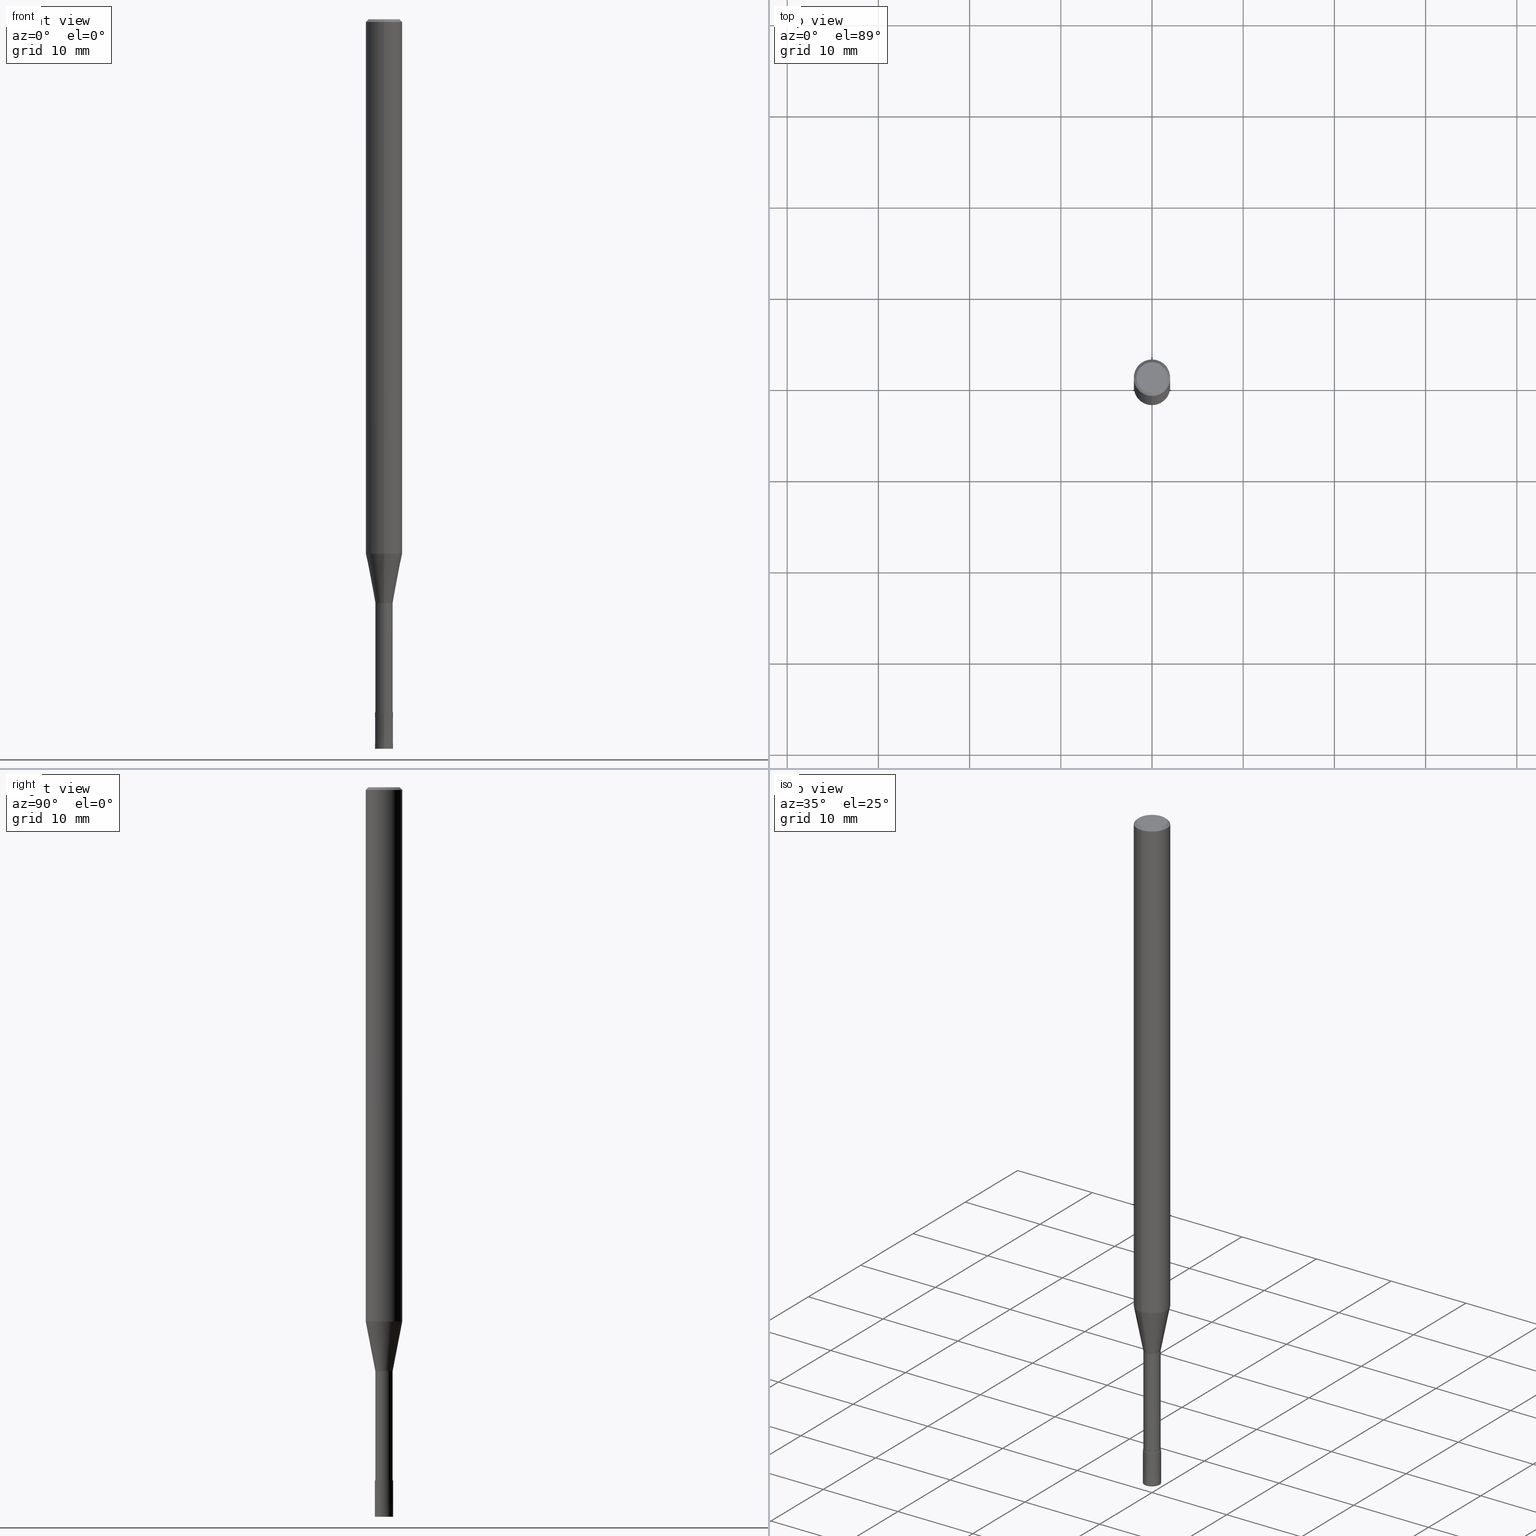
[diagram: canonical four-view strip — front | top / right | iso, engineering-drawing reading convention]
A machine part, canonical four-view strip (front | top / right | iso — engineering-drawing reading convention). The complete STEP part file that produces these views, byte-faithful:
ISO-10303-21;
HEADER;
FILE_DESCRIPTION(('no description'),'unknown implementation level');
FILE_NAME('CPRL2020-16-Huellk.stp','  ',('CIMSOURCE GmbH'),('CADClick - KiM GmbH - www.kimweb.de'),'unknown preprocess','ACIS','unknown authorization');
FILE_SCHEMA(('automotive_design'));
ENDSEC;
DATA;
#1=MECHANICAL_DESIGN_GEOMETRIC_PRESENTATION_REPRESENTATION(' ',(#14,#15,#16,#17,#18,#19,#20,#21,#22,#23,#24,#25,#26,#27,#28,#29,#30,#31,#32,#33,#34,#35,#36,#37,#38,#39,#40,#41,#42,#43,#44,#45,#46,#47,#48,#49,#50,#51,#52,#53,#54,#55,#56,#57,#58,#59,#60,#61,#62,#63,#64,#65,#66,#67,#68,#69,#70,#71,#72),#10);
#2=PRODUCT_DEFINITION_CONTEXT('',#73,'design');
#3=APPLICATION_PROTOCOL_DEFINITION('INTERNATIONAL STANDARD','automotive_design',1994,#73);
#4=PRODUCT_CATEGORY_RELATIONSHIP('NONE','NONE',#74,#75);
#5=SHAPE_DEFINITION_REPRESENTATION(#76,#77);
#6=PRODUCT_DEFINITION_CONTEXT('',#78,'design');
#7=APPLICATION_PROTOCOL_DEFINITION('INTERNATIONAL STANDARD','automotive_design',1994,#78);
#8=PRODUCT_CATEGORY_RELATIONSHIP('NONE','NONE',#79,#80);
#9=SHAPE_DEFINITION_REPRESENTATION(#81,#82);
#10= (GEOMETRIC_REPRESENTATION_CONTEXT(3)GLOBAL_UNCERTAINTY_ASSIGNED_CONTEXT((#85))GLOBAL_UNIT_ASSIGNED_CONTEXT((#87,#88,#89))REPRESENTATION_CONTEXT('NONE','WORKSPACE'));
#14=STYLED_ITEM('',(#91),#92);
#15=STYLED_ITEM('',(#93),#94);
#16=STYLED_ITEM('',(#95),#96);
#17=STYLED_ITEM('',(#97),#98);
#18=STYLED_ITEM('',(#99),#100);
#19=STYLED_ITEM('',(#101),#102);
#20=STYLED_ITEM('',(#103),#104);
#21=STYLED_ITEM('',(#105),#106);
#22=STYLED_ITEM('',(#107),#108);
#23=STYLED_ITEM('',(#109),#110);
#24=STYLED_ITEM('',(#111),#112);
#25=STYLED_ITEM('',(#113),#114);
#26=STYLED_ITEM('',(#115),#116);
#27=STYLED_ITEM('',(#117),#118);
#28=STYLED_ITEM('',(#119),#120);
#29=STYLED_ITEM('',(#121),#122);
#30=STYLED_ITEM('',(#123),#124);
#31=STYLED_ITEM('',(#125),#126);
#32=STYLED_ITEM('',(#127),#128);
#33=STYLED_ITEM('',(#129),#130);
#34=STYLED_ITEM('',(#131),#132);
#35=STYLED_ITEM('',(#133),#134);
#36=STYLED_ITEM('',(#135),#136);
#37=STYLED_ITEM('',(#137),#138);
#38=STYLED_ITEM('',(#139),#140);
#39=STYLED_ITEM('',(#141),#142);
#40=STYLED_ITEM('',(#143),#144);
#41=STYLED_ITEM('',(#145),#146);
#42=STYLED_ITEM('',(#147),#148);
#43=STYLED_ITEM('',(#149),#150);
#44=STYLED_ITEM('',(#151),#152);
#45=STYLED_ITEM('',(#153),#154);
#46=STYLED_ITEM('',(#155),#156);
#47=STYLED_ITEM('',(#157),#158);
#48=STYLED_ITEM('',(#159),#160);
#49=STYLED_ITEM('',(#161),#162);
#50=STYLED_ITEM('',(#163),#164);
#51=STYLED_ITEM('',(#165),#166);
#52=STYLED_ITEM('',(#167),#168);
#53=STYLED_ITEM('',(#169),#170);
#54=STYLED_ITEM('',(#171),#172);
#55=STYLED_ITEM('',(#173),#174);
#56=STYLED_ITEM('',(#175),#176);
#57=STYLED_ITEM('',(#177),#178);
#58=STYLED_ITEM('',(#179),#180);
#59=STYLED_ITEM('',(#181),#182);
#60=STYLED_ITEM('',(#183),#184);
#61=STYLED_ITEM('',(#185),#186);
#62=STYLED_ITEM('',(#187),#188);
#63=STYLED_ITEM('',(#189),#190);
#64=STYLED_ITEM('',(#191),#192);
#65=STYLED_ITEM('',(#193),#194);
#66=STYLED_ITEM('',(#195),#196);
#67=STYLED_ITEM('',(#197),#198);
#68=STYLED_ITEM('',(#199),#200);
#69=STYLED_ITEM('',(#201),#202);
#70=STYLED_ITEM('',(#203),#204);
#71=STYLED_ITEM('',(#205),#206);
#72=STYLED_ITEM('',(#207),#208);
#73=APPLICATION_CONTEXT(' ');
#74=PRODUCT_CATEGORY('part','NONE');
#75=PRODUCT_RELATED_PRODUCT_CATEGORY('detail',' ',(#209));
#76=PRODUCT_DEFINITION_SHAPE('NONE','NONE',#210);
#77=ADVANCED_BREP_SHAPE_REPRESENTATION('1',(#94,#211),#10);
#78=APPLICATION_CONTEXT(' ');
#79=PRODUCT_CATEGORY('part','NONE');
#80=PRODUCT_RELATED_PRODUCT_CATEGORY('detail',' ',(#212));
#81=PRODUCT_DEFINITION_SHAPE('NONE','NONE',#213);
#82=ADVANCED_BREP_SHAPE_REPRESENTATION('2',(#168,#214),#10);
#85=UNCERTAINTY_MEASURE_WITH_UNIT(LENGTH_MEASURE(1.0E-006),#87,'','');
#87= (CONVERSION_BASED_UNIT('MILLIMETRE',#217)LENGTH_UNIT()NAMED_UNIT(#220));
#88= (NAMED_UNIT(#222)PLANE_ANGLE_UNIT()SI_UNIT($,.RADIAN.));
#89= (NAMED_UNIT(#222)SOLID_ANGLE_UNIT()SI_UNIT($,.STERADIAN.));
#91=PRESENTATION_STYLE_ASSIGNMENT((#228));
#92=EDGE_CURVE('',#100,#174,#229,.T.);
#93=PRESENTATION_STYLE_ASSIGNMENT((#230));
#94=MANIFOLD_SOLID_BREP('1',#231);
#95=PRESENTATION_STYLE_ASSIGNMENT((#232));
#96=ADVANCED_FACE('',(#233),#234,.T.);
#97=PRESENTATION_STYLE_ASSIGNMENT((#235));
#98=ADVANCED_FACE('',(#236),#237,.T.);
#99=PRESENTATION_STYLE_ASSIGNMENT((#238));
#100=VERTEX_POINT('',#239);
#101=PRESENTATION_STYLE_ASSIGNMENT((#240));
#102=EDGE_CURVE('',#202,#186,#241,.T.);
#103=PRESENTATION_STYLE_ASSIGNMENT((#242));
#104=ADVANCED_FACE('',(#243,#244),#245,.T.);
#105=PRESENTATION_STYLE_ASSIGNMENT((#246));
#106=EDGE_CURVE('',#164,#178,#247,.T.);
#107=PRESENTATION_STYLE_ASSIGNMENT((#248));
#108=EDGE_CURVE('',#186,#202,#249,.T.);
#109=PRESENTATION_STYLE_ASSIGNMENT((#250));
#110=ADVANCED_FACE('',(#251),#252,.T.);
#111=PRESENTATION_STYLE_ASSIGNMENT((#253));
#112=EDGE_CURVE('',#100,#128,#254,.T.);
#113=PRESENTATION_STYLE_ASSIGNMENT((#255));
#114=ADVANCED_FACE('',(#256),#257,.T.);
#115=PRESENTATION_STYLE_ASSIGNMENT((#258));
#116=ADVANCED_FACE('',(#259),#260,.T.);
#117=PRESENTATION_STYLE_ASSIGNMENT((#261));
#118=EDGE_CURVE('',#184,#134,#262,.T.);
#119=PRESENTATION_STYLE_ASSIGNMENT((#263));
#120=EDGE_CURVE('',#160,#122,#264,.T.);
#121=PRESENTATION_STYLE_ASSIGNMENT((#265));
#122=VERTEX_POINT('',#266);
#123=PRESENTATION_STYLE_ASSIGNMENT((#267));
#124=ADVANCED_FACE('',(#268),#269,.T.);
#125=PRESENTATION_STYLE_ASSIGNMENT((#270));
#126=EDGE_CURVE('',#196,#190,#271,.T.);
#127=PRESENTATION_STYLE_ASSIGNMENT((#272));
#128=VERTEX_POINT('',#273);
#129=PRESENTATION_STYLE_ASSIGNMENT((#274));
#130=EDGE_CURVE('',#184,#146,#275,.T.);
#131=PRESENTATION_STYLE_ASSIGNMENT((#276));
#132=VERTEX_POINT('',#277);
#133=PRESENTATION_STYLE_ASSIGNMENT((#278));
#134=VERTEX_POINT('',#279);
#135=PRESENTATION_STYLE_ASSIGNMENT((#280));
#136=ADVANCED_FACE('',(#281),#282,.T.);
#137=PRESENTATION_STYLE_ASSIGNMENT((#283));
#138=EDGE_CURVE('',#128,#202,#284,.T.);
#139=PRESENTATION_STYLE_ASSIGNMENT((#285));
#140=ADVANCED_FACE('',(#286),#287,.T.);
#141=PRESENTATION_STYLE_ASSIGNMENT((#288));
#142=EDGE_CURVE('',#186,#132,#289,.T.);
#143=PRESENTATION_STYLE_ASSIGNMENT((#290));
#144=ADVANCED_FACE('',(#291),#292,.T.);
#145=PRESENTATION_STYLE_ASSIGNMENT((#293));
#146=VERTEX_POINT('',#294);
#147=PRESENTATION_STYLE_ASSIGNMENT((#295));
#148=EDGE_CURVE('',#174,#100,#296,.T.);
#149=PRESENTATION_STYLE_ASSIGNMENT((#297));
#150=EDGE_CURVE('',#160,#190,#298,.T.);
#151=PRESENTATION_STYLE_ASSIGNMENT((#299));
#152=ADVANCED_FACE('',(#300),#301,.T.);
#153=PRESENTATION_STYLE_ASSIGNMENT((#302));
#154=EDGE_CURVE('',#134,#192,#303,.T.);
#155=PRESENTATION_STYLE_ASSIGNMENT((#304));
#156=EDGE_CURVE('',#132,#128,#305,.T.);
#157=PRESENTATION_STYLE_ASSIGNMENT((#306));
#158=EDGE_CURVE('',#190,#160,#307,.T.);
#159=PRESENTATION_STYLE_ASSIGNMENT((#308));
#160=VERTEX_POINT('',#309);
#161=PRESENTATION_STYLE_ASSIGNMENT((#310));
#162=EDGE_CURVE('',#122,#164,#311,.T.);
#163=PRESENTATION_STYLE_ASSIGNMENT((#312));
#164=VERTEX_POINT('',#313);
#165=PRESENTATION_STYLE_ASSIGNMENT((#314));
#166=EDGE_CURVE('',#178,#164,#315,.T.);
#167=PRESENTATION_STYLE_ASSIGNMENT((#316));
#168=MANIFOLD_SOLID_BREP('2',#317);
#169=PRESENTATION_STYLE_ASSIGNMENT((#318));
#170=EDGE_CURVE('',#178,#196,#319,.T.);
#171=PRESENTATION_STYLE_ASSIGNMENT((#320));
#172=EDGE_CURVE('',#132,#174,#321,.T.);
#173=PRESENTATION_STYLE_ASSIGNMENT((#322));
#174=VERTEX_POINT('',#323);
#175=PRESENTATION_STYLE_ASSIGNMENT((#324));
#176=ADVANCED_FACE('',(#325),#326,.T.);
#177=PRESENTATION_STYLE_ASSIGNMENT((#327));
#178=VERTEX_POINT('',#328);
#179=PRESENTATION_STYLE_ASSIGNMENT((#329));
#180=EDGE_CURVE('',#192,#134,#330,.T.);
#181=PRESENTATION_STYLE_ASSIGNMENT((#331));
#182=EDGE_CURVE('',#196,#122,#332,.T.);
#183=PRESENTATION_STYLE_ASSIGNMENT((#333));
#184=VERTEX_POINT('',#334);
#185=PRESENTATION_STYLE_ASSIGNMENT((#335));
#186=VERTEX_POINT('',#336);
#187=PRESENTATION_STYLE_ASSIGNMENT((#337));
#188=EDGE_CURVE('',#192,#146,#338,.T.);
#189=PRESENTATION_STYLE_ASSIGNMENT((#339));
#190=VERTEX_POINT('',#340);
#191=PRESENTATION_STYLE_ASSIGNMENT((#341));
#192=VERTEX_POINT('',#342);
#193=PRESENTATION_STYLE_ASSIGNMENT((#343));
#194=ADVANCED_FACE('',(#344),#345,.T.);
#195=PRESENTATION_STYLE_ASSIGNMENT((#346));
#196=VERTEX_POINT('',#347);
#197=PRESENTATION_STYLE_ASSIGNMENT((#348));
#198=EDGE_CURVE('',#122,#196,#349,.T.);
#199=PRESENTATION_STYLE_ASSIGNMENT((#350));
#200=ADVANCED_FACE('',(#351),#352,.T.);
#201=PRESENTATION_STYLE_ASSIGNMENT((#353));
#202=VERTEX_POINT('',#354);
#203=PRESENTATION_STYLE_ASSIGNMENT((#355));
#204=EDGE_CURVE('',#146,#184,#356,.T.);
#205=PRESENTATION_STYLE_ASSIGNMENT((#357));
#206=EDGE_CURVE('',#128,#132,#358,.T.);
#207=PRESENTATION_STYLE_ASSIGNMENT((#359));
#208=ADVANCED_FACE('',(#360),#361,.T.);
#209=PRODUCT('1','1','PART-1-DESC',(#362));
#210=PRODUCT_DEFINITION('NONE','NONE',#363,#2);
#211=AXIS2_PLACEMENT_3D('',#364,#365,#366);
#212=PRODUCT('2','2','PART-2-DESC',(#367));
#213=PRODUCT_DEFINITION('NONE','NONE',#368,#6);
#214=AXIS2_PLACEMENT_3D('',#369,#370,#371);
#217=LENGTH_MEASURE_WITH_UNIT(LENGTH_MEASURE(1.0),#372);
#220=DIMENSIONAL_EXPONENTS(1.0,0.0,0.0,0.0,0.0,0.0,0.0);
#222=DIMENSIONAL_EXPONENTS(0.0,0.0,0.0,0.0,0.0,0.0,0.0);
#228=CURVE_STYLE('',#373,POSITIVE_LENGTH_MEASURE(1.0E-006),#374);
#229=CIRCLE('',#375,2.0);
#230=SURFACE_STYLE_USAGE(.BOTH.,#376);
#231=CLOSED_SHELL('',(#200,#98,#208,#116,#104,#110,#152,#136,#194,#140,#124));
#232=SURFACE_STYLE_USAGE(.BOTH.,#377);
#233=FACE_OUTER_BOUND('',#378,.T.);
#234=CONICAL_SURFACE('',#379,0.99995,2.49999999947889E-005);
#235=SURFACE_STYLE_USAGE(.BOTH.,#380);
#236=FACE_OUTER_BOUND('',#381,.T.);
#237=CONICAL_SURFACE('',#382,1.47495,0.191978649183841);
#238=POINT_STYLE(' ',#383,POSITIVE_LENGTH_MEASURE(1.0E-006),#384);
#239=CARTESIAN_POINT('',(2.44921270764475E-016,-2.0,-58.598));
#240=CURVE_STYLE('',#385,POSITIVE_LENGTH_MEASURE(1.0E-006),#386);
#241=CIRCLE('',#387,1.7);
#242=SURFACE_STYLE_USAGE(.BOTH.,#388);
#243=FACE_OUTER_BOUND('',#389,.T.);
#244=FACE_BOUND('',#390,.T.);
#245=PLANE('',#391);
#246=CURVE_STYLE('',#392,POSITIVE_LENGTH_MEASURE(1.0E-006),#393);
#247=CIRCLE('',#394,0.94995);
#248=CURVE_STYLE('',#395,POSITIVE_LENGTH_MEASURE(1.0E-006),#396);
#249=CIRCLE('',#397,1.7);
#250=SURFACE_STYLE_USAGE(.BOTH.,#398);
#251=FACE_OUTER_BOUND('',#399,.T.);
#252=PLANE('',#400);
#253=CURVE_STYLE('',#401,POSITIVE_LENGTH_MEASURE(1.0E-006),#402);
#254=LINE('',#403,#404);
#255=SURFACE_STYLE_USAGE(.BOTH.,#405);
#256=FACE_OUTER_BOUND('',#406,.T.);
#257=CONICAL_SURFACE('',#407,0.99995,2.49999999947889E-005);
#258=SURFACE_STYLE_USAGE(.BOTH.,#408);
#259=FACE_OUTER_BOUND('',#409,.T.);
#260=CONICAL_SURFACE('',#410,1.85,0.785398163397453);
#261=CURVE_STYLE('',#411,POSITIVE_LENGTH_MEASURE(1.0E-006),#412);
#262=LINE('',#413,#414);
#263=CURVE_STYLE('',#415,POSITIVE_LENGTH_MEASURE(1.0E-006),#416);
#264=LINE('',#417,#418);
#265=POINT_STYLE(' ',#419,POSITIVE_LENGTH_MEASURE(1.0E-006),#420);
#266=CARTESIAN_POINT('',(0.0,0.94995,-64.0));
#267=SURFACE_STYLE_USAGE(.BOTH.,#421);
#268=FACE_OUTER_BOUND('',#422,.T.);
#269=PLANE('',#423);
#270=CURVE_STYLE('',#424,POSITIVE_LENGTH_MEASURE(1.0E-006),#425);
#271=LINE('',#426,#427);
#272=POINT_STYLE(' ',#428,POSITIVE_LENGTH_MEASURE(1.0E-006),#429);
#273=CARTESIAN_POINT('',(2.44921270764475E-016,-2.0,-0.299999999999997));
#274=CURVE_STYLE('',#430,POSITIVE_LENGTH_MEASURE(1.0E-006),#431);
#275=CIRCLE('',#432,0.9999);
#276=POINT_STYLE(' ',#433,POSITIVE_LENGTH_MEASURE(1.0E-006),#434);
#277=CARTESIAN_POINT('',(0.0,2.0,-0.299999999999997));
#278=POINT_STYLE(' ',#435,POSITIVE_LENGTH_MEASURE(1.0E-006),#436);
#279=CARTESIAN_POINT('',(0.0,1.0,-80.0));
#280=SURFACE_STYLE_USAGE(.BOTH.,#437);
#281=FACE_OUTER_BOUND('',#438,.T.);
#282=CYLINDRICAL_SURFACE('',#439,2.0);
#283=CURVE_STYLE('',#440,POSITIVE_LENGTH_MEASURE(1.0E-006),#441);
#284=LINE('',#442,#443);
#285=SURFACE_STYLE_USAGE(.BOTH.,#444);
#286=FACE_OUTER_BOUND('',#445,.T.);
#287=CYLINDRICAL_SURFACE('',#446,0.94995);
#288=CURVE_STYLE('',#447,POSITIVE_LENGTH_MEASURE(1.0E-006),#448);
#289=LINE('',#449,#450);
#290=SURFACE_STYLE_USAGE(.BOTH.,#451);
#291=FACE_OUTER_BOUND('',#452,.T.);
#292=PLANE('',#453);
#293=POINT_STYLE(' ',#454,POSITIVE_LENGTH_MEASURE(1.0E-006),#455);
#294=CARTESIAN_POINT('',(1.224483893187E-016,-0.9999,-76.0));
#295=CURVE_STYLE('',#456,POSITIVE_LENGTH_MEASURE(1.0E-006),#457);
#296=CIRCLE('',#458,2.0);
#297=CURVE_STYLE('',#459,POSITIVE_LENGTH_MEASURE(1.0E-006),#460);
#298=CIRCLE('',#461,1.99995);
#299=SURFACE_STYLE_USAGE(.BOTH.,#462);
#300=FACE_OUTER_BOUND('',#463,.T.);
#301=CONICAL_SURFACE('',#464,1.85,0.785398163397453);
#302=CURVE_STYLE('',#465,POSITIVE_LENGTH_MEASURE(1.0E-006),#466);
#303=CIRCLE('',#467,1.0);
#304=CURVE_STYLE('',#468,POSITIVE_LENGTH_MEASURE(1.0E-006),#469);
#305=CIRCLE('',#470,2.0);
#306=CURVE_STYLE('',#471,POSITIVE_LENGTH_MEASURE(1.0E-006),#472);
#307=CIRCLE('',#473,1.99995);
#308=POINT_STYLE(' ',#474,POSITIVE_LENGTH_MEASURE(1.0E-006),#475);
#309=CARTESIAN_POINT('',(0.0,1.99995,-58.598));
#310=CURVE_STYLE('',#476,POSITIVE_LENGTH_MEASURE(1.0E-006),#477);
#311=LINE('',#478,#479);
#312=POINT_STYLE(' ',#480,POSITIVE_LENGTH_MEASURE(1.0E-006),#481);
#313=CARTESIAN_POINT('',(0.0,0.94995,-76.0));
#314=CURVE_STYLE('',#482,POSITIVE_LENGTH_MEASURE(1.0E-006),#483);
#315=CIRCLE('',#484,0.94995);
#316=SURFACE_STYLE_USAGE(.BOTH.,#485);
#317=CLOSED_SHELL('',(#96,#144,#114,#176));
#318=CURVE_STYLE('',#486,POSITIVE_LENGTH_MEASURE(1.0E-006),#487);
#319=LINE('',#488,#489);
#320=CURVE_STYLE('',#490,POSITIVE_LENGTH_MEASURE(1.0E-006),#491);
#321=LINE('',#492,#493);
#322=POINT_STYLE(' ',#494,POSITIVE_LENGTH_MEASURE(1.0E-006),#495);
#323=CARTESIAN_POINT('',(0.0,2.0,-58.598));
#324=SURFACE_STYLE_USAGE(.BOTH.,#496);
#325=FACE_OUTER_BOUND('',#497,.T.);
#326=PLANE('',#498);
#327=POINT_STYLE(' ',#499,POSITIVE_LENGTH_MEASURE(1.0E-006),#500);
#328=CARTESIAN_POINT('',(1.16331480581357E-016,-0.94995,-76.0));
#329=CURVE_STYLE('',#501,POSITIVE_LENGTH_MEASURE(1.0E-006),#502);
#330=CIRCLE('',#503,1.0);
#331=CURVE_STYLE('',#504,POSITIVE_LENGTH_MEASURE(1.0E-006),#505);
#332=CIRCLE('',#506,0.94995);
#333=POINT_STYLE(' ',#507,POSITIVE_LENGTH_MEASURE(1.0E-006),#508);
#334=CARTESIAN_POINT('',(0.0,0.9999,-76.0));
#335=POINT_STYLE(' ',#509,POSITIVE_LENGTH_MEASURE(1.0E-006),#510);
#336=CARTESIAN_POINT('',(0.0,1.7,0.0));
#337=CURVE_STYLE('',#511,POSITIVE_LENGTH_MEASURE(1.0E-006),#512);
#338=LINE('',#513,#514);
#339=POINT_STYLE(' ',#515,POSITIVE_LENGTH_MEASURE(1.0E-006),#516);
#340=CARTESIAN_POINT('',(2.44915147732706E-016,-1.99995,-58.598));
#341=POINT_STYLE(' ',#517,POSITIVE_LENGTH_MEASURE(1.0E-006),#518);
#342=CARTESIAN_POINT('',(1.22460635382238E-016,-1.0,-80.0));
#343=SURFACE_STYLE_USAGE(.BOTH.,#519);
#344=FACE_OUTER_BOUND('',#520,.T.);
#345=CONICAL_SURFACE('',#521,1.47495,0.191978649183841);
#346=POINT_STYLE(' ',#522,POSITIVE_LENGTH_MEASURE(1.0E-006),#523);
#347=CARTESIAN_POINT('',(1.16331480581357E-016,-0.94995,-64.0));
#348=CURVE_STYLE('',#524,POSITIVE_LENGTH_MEASURE(1.0E-006),#525);
#349=CIRCLE('',#526,0.94995);
#350=SURFACE_STYLE_USAGE(.BOTH.,#527);
#351=FACE_OUTER_BOUND('',#528,.T.);
#352=CYLINDRICAL_SURFACE('',#529,0.94995);
#353=POINT_STYLE(' ',#530,POSITIVE_LENGTH_MEASURE(1.0E-006),#531);
#354=CARTESIAN_POINT('',(2.08183080149804E-016,-1.7,0.0));
#355=CURVE_STYLE('',#532,POSITIVE_LENGTH_MEASURE(1.0E-006),#533);
#356=CIRCLE('',#534,0.9999);
#357=CURVE_STYLE('',#535,POSITIVE_LENGTH_MEASURE(1.0E-006),#536);
#358=CIRCLE('',#537,2.0);
#359=SURFACE_STYLE_USAGE(.BOTH.,#538);
#360=FACE_OUTER_BOUND('',#539,.T.);
#361=CYLINDRICAL_SURFACE('',#540,2.0);
#362=PRODUCT_CONTEXT('',#73,'mechanical');
#363=PRODUCT_DEFINITION_FORMATION_WITH_SPECIFIED_SOURCE(' ','NONE',#209,.NOT_KNOWN.);
#364=CARTESIAN_POINT('',(0.0,0.0,0.0));
#365=DIRECTION('',(0.0,0.0,1.0));
#366=DIRECTION('',(1.0,0.0,0.0));
#367=PRODUCT_CONTEXT('',#78,'mechanical');
#368=PRODUCT_DEFINITION_FORMATION_WITH_SPECIFIED_SOURCE(' ','NONE',#212,.NOT_KNOWN.);
#369=CARTESIAN_POINT('',(0.0,0.0,0.0));
#370=DIRECTION('',(0.0,0.0,1.0));
#371=DIRECTION('',(1.0,0.0,0.0));
#372= (NAMED_UNIT(#220)LENGTH_UNIT()SI_UNIT(.MILLI.,.METRE.));
#373=DRAUGHTING_PRE_DEFINED_CURVE_FONT('continuous');
#374=COLOUR_RGB('',0.498039215803146,0.498039215803146,0.498039215803146);
#375=AXIS2_PLACEMENT_3D('',#542,#543,#544);
#376=SURFACE_SIDE_STYLE('',(#545));
#377=SURFACE_SIDE_STYLE('',(#546));
#378=EDGE_LOOP('',(#547,#548,#549,#550));
#379=AXIS2_PLACEMENT_3D('',#551,#552,#553);
#380=SURFACE_SIDE_STYLE('',(#554));
#381=EDGE_LOOP('',(#555,#556,#557,#558));
#382=AXIS2_PLACEMENT_3D('',#559,#560,#561);
#383=PRE_DEFINED_MARKER('');
#384=COLOUR_RGB('',0.498039215803146,0.498039215803146,0.498039215803146);
#385=DRAUGHTING_PRE_DEFINED_CURVE_FONT('continuous');
#386=COLOUR_RGB('',0.498039215803146,0.498039215803146,0.498039215803146);
#387=AXIS2_PLACEMENT_3D('',#562,#563,#564);
#388=SURFACE_SIDE_STYLE('',(#565));
#389=EDGE_LOOP('',(#566,#567));
#390=EDGE_LOOP('',(#568,#569));
#391=AXIS2_PLACEMENT_3D('',#570,#571,#572);
#392=DRAUGHTING_PRE_DEFINED_CURVE_FONT('continuous');
#393=COLOUR_RGB('',0.498039215803146,0.498039215803146,0.498039215803146);
#394=AXIS2_PLACEMENT_3D('',#573,#574,#575);
#395=DRAUGHTING_PRE_DEFINED_CURVE_FONT('continuous');
#396=COLOUR_RGB('',0.498039215803146,0.498039215803146,0.498039215803146);
#397=AXIS2_PLACEMENT_3D('',#576,#577,#578);
#398=SURFACE_SIDE_STYLE('',(#579));
#399=EDGE_LOOP('',(#580,#581));
#400=AXIS2_PLACEMENT_3D('',#582,#583,#584);
#401=DRAUGHTING_PRE_DEFINED_CURVE_FONT('continuous');
#402=COLOUR_RGB('',0.498039215803146,0.498039215803146,0.498039215803146);
#403=CARTESIAN_POINT('',(2.44921270764475E-016,-2.0,-29.449));
#404=VECTOR('',#585,1.0);
#405=SURFACE_SIDE_STYLE('',(#586));
#406=EDGE_LOOP('',(#587,#588,#589,#590));
#407=AXIS2_PLACEMENT_3D('',#591,#592,#593);
#408=SURFACE_SIDE_STYLE('',(#594));
#409=EDGE_LOOP('',(#595,#596,#597,#598));
#410=AXIS2_PLACEMENT_3D('',#599,#600,#601);
#411=DRAUGHTING_PRE_DEFINED_CURVE_FONT('continuous');
#412=COLOUR_RGB('',0.800000011920929,0.800000011920929,0.800000011920929);
#413=CARTESIAN_POINT('',(-1.22454512350469E-016,0.99995,-78.0));
#414=VECTOR('',#602,1.0);
#415=DRAUGHTING_PRE_DEFINED_CURVE_FONT('continuous');
#416=COLOUR_RGB('',0.498039215803146,0.498039215803146,0.498039215803146);
#417=CARTESIAN_POINT('',(-1.80623314157032E-016,1.47495,-61.299));
#418=VECTOR('',#603,1.0);
#419=PRE_DEFINED_MARKER('');
#420=COLOUR_RGB('',0.498039215803146,0.498039215803146,0.498039215803146);
#421=SURFACE_SIDE_STYLE('',(#604));
#422=EDGE_LOOP('',(#605,#606));
#423=AXIS2_PLACEMENT_3D('',#607,#608,#609);
#424=DRAUGHTING_PRE_DEFINED_CURVE_FONT('continuous');
#425=COLOUR_RGB('',0.498039215803146,0.498039215803146,0.498039215803146);
#426=CARTESIAN_POINT('',(1.80623314157031E-016,-1.47495,-61.299));
#427=VECTOR('',#610,1.0);
#428=PRE_DEFINED_MARKER('');
#429=COLOUR_RGB('',0.498039215803146,0.498039215803146,0.498039215803146);
#430=DRAUGHTING_PRE_DEFINED_CURVE_FONT('continuous');
#431=COLOUR_RGB('',0.800000011920929,0.800000011920929,0.800000011920929);
#432=AXIS2_PLACEMENT_3D('',#611,#612,#613);
#433=PRE_DEFINED_MARKER('');
#434=COLOUR_RGB('',0.498039215803146,0.498039215803146,0.498039215803146);
#435=PRE_DEFINED_MARKER('');
#436=COLOUR_RGB('',0.800000011920929,0.800000011920929,0.800000011920929);
#437=SURFACE_SIDE_STYLE('',(#614));
#438=EDGE_LOOP('',(#615,#616,#617,#618));
#439=AXIS2_PLACEMENT_3D('',#619,#620,#621);
#440=DRAUGHTING_PRE_DEFINED_CURVE_FONT('continuous');
#441=COLOUR_RGB('',0.498039215803146,0.498039215803146,0.498039215803146);
#442=CARTESIAN_POINT('',(2.2655217545714E-016,-1.85,-0.149999999999999));
#443=VECTOR('',#622,1.0);
#444=SURFACE_SIDE_STYLE('',(#623));
#445=EDGE_LOOP('',(#624,#625,#626,#627));
#446=AXIS2_PLACEMENT_3D('',#628,#629,#630);
#447=DRAUGHTING_PRE_DEFINED_CURVE_FONT('continuous');
#448=COLOUR_RGB('',0.498039215803146,0.498039215803146,0.498039215803146);
#449=CARTESIAN_POINT('',(-2.2655217545714E-016,1.85,-0.149999999999999));
#450=VECTOR('',#631,1.0);
#451=SURFACE_SIDE_STYLE('',(#632));
#452=EDGE_LOOP('',(#633,#634));
#453=AXIS2_PLACEMENT_3D('',#635,#636,#637);
#454=PRE_DEFINED_MARKER('');
#455=COLOUR_RGB('',0.800000011920929,0.800000011920929,0.800000011920929);
#456=DRAUGHTING_PRE_DEFINED_CURVE_FONT('continuous');
#457=COLOUR_RGB('',0.498039215803146,0.498039215803146,0.498039215803146);
#458=AXIS2_PLACEMENT_3D('',#638,#639,#640);
#459=DRAUGHTING_PRE_DEFINED_CURVE_FONT('continuous');
#460=COLOUR_RGB('',0.498039215803146,0.498039215803146,0.498039215803146);
#461=AXIS2_PLACEMENT_3D('',#641,#642,#643);
#462=SURFACE_SIDE_STYLE('',(#644));
#463=EDGE_LOOP('',(#645,#646,#647,#648));
#464=AXIS2_PLACEMENT_3D('',#649,#650,#651);
#465=DRAUGHTING_PRE_DEFINED_CURVE_FONT('continuous');
#466=COLOUR_RGB('',0.800000011920929,0.800000011920929,0.800000011920929);
#467=AXIS2_PLACEMENT_3D('',#652,#653,#654);
#468=DRAUGHTING_PRE_DEFINED_CURVE_FONT('continuous');
#469=COLOUR_RGB('',0.498039215803146,0.498039215803146,0.498039215803146);
#470=AXIS2_PLACEMENT_3D('',#655,#656,#657);
#471=DRAUGHTING_PRE_DEFINED_CURVE_FONT('continuous');
#472=COLOUR_RGB('',0.498039215803146,0.498039215803146,0.498039215803146);
#473=AXIS2_PLACEMENT_3D('',#658,#659,#660);
#474=PRE_DEFINED_MARKER('');
#475=COLOUR_RGB('',0.498039215803146,0.498039215803146,0.498039215803146);
#476=DRAUGHTING_PRE_DEFINED_CURVE_FONT('continuous');
#477=COLOUR_RGB('',0.498039215803146,0.498039215803146,0.498039215803146);
#478=CARTESIAN_POINT('',(-1.16331480581357E-016,0.94995,-70.0));
#479=VECTOR('',#661,1.0);
#480=PRE_DEFINED_MARKER('');
#481=COLOUR_RGB('',0.498039215803146,0.498039215803146,0.498039215803146);
#482=DRAUGHTING_PRE_DEFINED_CURVE_FONT('continuous');
#483=COLOUR_RGB('',0.498039215803146,0.498039215803146,0.498039215803146);
#484=AXIS2_PLACEMENT_3D('',#662,#663,#664);
#485=SURFACE_SIDE_STYLE('',(#665));
#486=DRAUGHTING_PRE_DEFINED_CURVE_FONT('continuous');
#487=COLOUR_RGB('',0.498039215803146,0.498039215803146,0.498039215803146);
#488=CARTESIAN_POINT('',(1.16331480581357E-016,-0.94995,-70.0));
#489=VECTOR('',#666,1.0);
#490=DRAUGHTING_PRE_DEFINED_CURVE_FONT('continuous');
#491=COLOUR_RGB('',0.498039215803146,0.498039215803146,0.498039215803146);
#492=CARTESIAN_POINT('',(-2.44921270764475E-016,2.0,-29.449));
#493=VECTOR('',#667,1.0);
#494=PRE_DEFINED_MARKER('');
#495=COLOUR_RGB('',0.498039215803146,0.498039215803146,0.498039215803146);
#496=SURFACE_SIDE_STYLE('',(#668));
#497=EDGE_LOOP('',(#669,#670));
#498=AXIS2_PLACEMENT_3D('',#671,#672,#673);
#499=PRE_DEFINED_MARKER('');
#500=COLOUR_RGB('',0.498039215803146,0.498039215803146,0.498039215803146);
#501=DRAUGHTING_PRE_DEFINED_CURVE_FONT('continuous');
#502=COLOUR_RGB('',0.800000011920929,0.800000011920929,0.800000011920929);
#503=AXIS2_PLACEMENT_3D('',#674,#675,#676);
#504=DRAUGHTING_PRE_DEFINED_CURVE_FONT('continuous');
#505=COLOUR_RGB('',0.498039215803146,0.498039215803146,0.498039215803146);
#506=AXIS2_PLACEMENT_3D('',#677,#678,#679);
#507=PRE_DEFINED_MARKER('');
#508=COLOUR_RGB('',0.800000011920929,0.800000011920929,0.800000011920929);
#509=PRE_DEFINED_MARKER('');
#510=COLOUR_RGB('',0.498039215803146,0.498039215803146,0.498039215803146);
#511=DRAUGHTING_PRE_DEFINED_CURVE_FONT('continuous');
#512=COLOUR_RGB('',0.800000011920929,0.800000011920929,0.800000011920929);
#513=CARTESIAN_POINT('',(1.22454512350469E-016,-0.99995,-78.0));
#514=VECTOR('',#680,1.0);
#515=PRE_DEFINED_MARKER('');
#516=COLOUR_RGB('',0.498039215803146,0.498039215803146,0.498039215803146);
#517=PRE_DEFINED_MARKER('');
#518=COLOUR_RGB('',0.800000011920929,0.800000011920929,0.800000011920929);
#519=SURFACE_SIDE_STYLE('',(#681));
#520=EDGE_LOOP('',(#682,#683,#684,#685));
#521=AXIS2_PLACEMENT_3D('',#686,#687,#688);
#522=PRE_DEFINED_MARKER('');
#523=COLOUR_RGB('',0.498039215803146,0.498039215803146,0.498039215803146);
#524=DRAUGHTING_PRE_DEFINED_CURVE_FONT('continuous');
#525=COLOUR_RGB('',0.498039215803146,0.498039215803146,0.498039215803146);
#526=AXIS2_PLACEMENT_3D('',#689,#690,#691);
#527=SURFACE_SIDE_STYLE('',(#692));
#528=EDGE_LOOP('',(#693,#694,#695,#696));
#529=AXIS2_PLACEMENT_3D('',#697,#698,#699);
#530=PRE_DEFINED_MARKER('');
#531=COLOUR_RGB('',0.498039215803146,0.498039215803146,0.498039215803146);
#532=DRAUGHTING_PRE_DEFINED_CURVE_FONT('continuous');
#533=COLOUR_RGB('',0.800000011920929,0.800000011920929,0.800000011920929);
#534=AXIS2_PLACEMENT_3D('',#700,#701,#702);
#535=DRAUGHTING_PRE_DEFINED_CURVE_FONT('continuous');
#536=COLOUR_RGB('',0.498039215803146,0.498039215803146,0.498039215803146);
#537=AXIS2_PLACEMENT_3D('',#703,#704,#705);
#538=SURFACE_SIDE_STYLE('',(#706));
#539=EDGE_LOOP('',(#707,#708,#709,#710));
#540=AXIS2_PLACEMENT_3D('',#711,#712,#713);
#542=CARTESIAN_POINT('',(0.0,0.0,-58.598));
#543=DIRECTION('',(0.0,0.0,-1.0));
#544=DIRECTION('',(0.0,1.0,0.0));
#545=SURFACE_STYLE_FILL_AREA(#714);
#546=SURFACE_STYLE_FILL_AREA(#715);
#547=ORIENTED_EDGE('',*,*,#118,.F.);
#548=ORIENTED_EDGE('',*,*,#130,.T.);
#549=ORIENTED_EDGE('',*,*,#188,.F.);
#550=ORIENTED_EDGE('',*,*,#154,.F.);
#551=CARTESIAN_POINT('',(0.0,0.0,-78.0));
#552=DIRECTION('',(0.0,-0.0,-1.0));
#553=DIRECTION('',(0.0,1.0,0.0));
#554=SURFACE_STYLE_FILL_AREA(#716);
#555=ORIENTED_EDGE('',*,*,#120,.F.);
#556=ORIENTED_EDGE('',*,*,#150,.T.);
#557=ORIENTED_EDGE('',*,*,#126,.F.);
#558=ORIENTED_EDGE('',*,*,#198,.F.);
#559=CARTESIAN_POINT('',(0.0,0.0,-61.299));
#560=DIRECTION('',(-0.0,-0.0,1.0));
#561=DIRECTION('',(0.0,1.0,0.0));
#562=CARTESIAN_POINT('',(0.0,0.0,0.0));
#563=DIRECTION('',(0.0,0.0,-1.0));
#564=DIRECTION('',(0.0,1.0,0.0));
#565=SURFACE_STYLE_FILL_AREA(#717);
#566=ORIENTED_EDGE('',*,*,#148,.T.);
#567=ORIENTED_EDGE('',*,*,#92,.T.);
#568=ORIENTED_EDGE('',*,*,#150,.F.);
#569=ORIENTED_EDGE('',*,*,#158,.F.);
#570=CARTESIAN_POINT('',(0.0,1.0,-58.598));
#571=DIRECTION('',(0.0,0.0,-1.0));
#572=DIRECTION('',(0.0,1.0,0.0));
#573=CARTESIAN_POINT('',(0.0,0.0,-76.0));
#574=DIRECTION('',(0.0,0.0,-1.0));
#575=DIRECTION('',(0.0,1.0,0.0));
#576=CARTESIAN_POINT('',(0.0,0.0,0.0));
#577=DIRECTION('',(0.0,0.0,-1.0));
#578=DIRECTION('',(0.0,1.0,0.0));
#579=SURFACE_STYLE_FILL_AREA(#718);
#580=ORIENTED_EDGE('',*,*,#108,.F.);
#581=ORIENTED_EDGE('',*,*,#102,.F.);
#582=CARTESIAN_POINT('',(0.0,0.85,0.0));
#583=DIRECTION('',(-0.0,0.0,1.0));
#584=DIRECTION('',(0.0,-1.0,0.0));
#585=DIRECTION('',(-0.0,-0.0,1.0));
#586=SURFACE_STYLE_FILL_AREA(#719);
#587=ORIENTED_EDGE('',*,*,#118,.T.);
#588=ORIENTED_EDGE('',*,*,#180,.F.);
#589=ORIENTED_EDGE('',*,*,#188,.T.);
#590=ORIENTED_EDGE('',*,*,#204,.T.);
#591=CARTESIAN_POINT('',(0.0,0.0,-78.0));
#592=DIRECTION('',(0.0,-0.0,-1.0));
#593=DIRECTION('',(0.0,1.0,0.0));
#594=SURFACE_STYLE_FILL_AREA(#720);
#595=ORIENTED_EDGE('',*,*,#142,.F.);
#596=ORIENTED_EDGE('',*,*,#108,.T.);
#597=ORIENTED_EDGE('',*,*,#138,.F.);
#598=ORIENTED_EDGE('',*,*,#156,.F.);
#599=CARTESIAN_POINT('',(0.0,0.0,-0.149999999999999));
#600=DIRECTION('',(0.0,-0.0,-1.0));
#601=DIRECTION('',(0.0,1.0,0.0));
#602=DIRECTION('',(-3.06151588359888E-021,2.49999999921847E-005,-0.9999999996875));
#603=DIRECTION('',(2.33656809909205E-017,-0.190801565890859,-0.981628627564211));
#604=SURFACE_STYLE_FILL_AREA(#721);
#605=ORIENTED_EDGE('',*,*,#106,.T.);
#606=ORIENTED_EDGE('',*,*,#166,.T.);
#607=CARTESIAN_POINT('',(0.0,0.474975,-76.0));
#608=DIRECTION('',(0.0,0.0,-1.0));
#609=DIRECTION('',(0.0,1.0,0.0));
#610=DIRECTION('',(2.33656809909205E-017,-0.190801565890859,0.981628627564211));
#611=CARTESIAN_POINT('',(0.0,0.0,-76.0));
#612=DIRECTION('',(0.0,0.0,-1.0));
#613=DIRECTION('',(0.0,1.0,0.0));
#614=SURFACE_STYLE_FILL_AREA(#722);
#615=ORIENTED_EDGE('',*,*,#172,.T.);
#616=ORIENTED_EDGE('',*,*,#92,.F.);
#617=ORIENTED_EDGE('',*,*,#112,.T.);
#618=ORIENTED_EDGE('',*,*,#206,.T.);
#619=CARTESIAN_POINT('',(0.0,0.0,-29.449));
#620=DIRECTION('',(-0.0,-0.0,1.0));
#621=DIRECTION('',(0.0,1.0,0.0));
#622=DIRECTION('',(-8.6592745707194E-017,0.707106781186551,0.707106781186544));
#623=SURFACE_STYLE_FILL_AREA(#723);
#624=ORIENTED_EDGE('',*,*,#162,.T.);
#625=ORIENTED_EDGE('',*,*,#166,.F.);
#626=ORIENTED_EDGE('',*,*,#170,.T.);
#627=ORIENTED_EDGE('',*,*,#182,.T.);
#628=CARTESIAN_POINT('',(0.0,0.0,-70.0));
#629=DIRECTION('',(-0.0,-0.0,1.0));
#630=DIRECTION('',(0.0,1.0,0.0));
#631=DIRECTION('',(-8.6592745707194E-017,0.707106781186551,-0.707106781186544));
#632=SURFACE_STYLE_FILL_AREA(#724);
#633=ORIENTED_EDGE('',*,*,#130,.F.);
#634=ORIENTED_EDGE('',*,*,#204,.F.);
#635=CARTESIAN_POINT('',(0.0,0.49995,-76.0));
#636=DIRECTION('',(-0.0,0.0,1.0));
#637=DIRECTION('',(0.0,-1.0,0.0));
#638=CARTESIAN_POINT('',(0.0,0.0,-58.598));
#639=DIRECTION('',(0.0,0.0,-1.0));
#640=DIRECTION('',(0.0,1.0,0.0));
#641=CARTESIAN_POINT('',(0.0,0.0,-58.598));
#642=DIRECTION('',(0.0,0.0,-1.0));
#643=DIRECTION('',(0.0,1.0,0.0));
#644=SURFACE_STYLE_FILL_AREA(#725);
#645=ORIENTED_EDGE('',*,*,#142,.T.);
#646=ORIENTED_EDGE('',*,*,#206,.F.);
#647=ORIENTED_EDGE('',*,*,#138,.T.);
#648=ORIENTED_EDGE('',*,*,#102,.T.);
#649=CARTESIAN_POINT('',(0.0,0.0,-0.149999999999999));
#650=DIRECTION('',(0.0,-0.0,-1.0));
#651=DIRECTION('',(0.0,1.0,0.0));
#652=CARTESIAN_POINT('',(0.0,0.0,-80.0));
#653=DIRECTION('',(0.0,0.0,-1.0));
#654=DIRECTION('',(0.0,1.0,0.0));
#655=CARTESIAN_POINT('',(0.0,0.0,-0.299999999999997));
#656=DIRECTION('',(0.0,0.0,-1.0));
#657=DIRECTION('',(0.0,1.0,0.0));
#658=CARTESIAN_POINT('',(0.0,0.0,-58.598));
#659=DIRECTION('',(0.0,0.0,-1.0));
#660=DIRECTION('',(0.0,1.0,0.0));
#661=DIRECTION('',(0.0,0.0,-1.0));
#662=CARTESIAN_POINT('',(0.0,0.0,-76.0));
#663=DIRECTION('',(0.0,0.0,-1.0));
#664=DIRECTION('',(0.0,1.0,0.0));
#665=SURFACE_STYLE_FILL_AREA(#726);
#666=DIRECTION('',(-0.0,-0.0,1.0));
#667=DIRECTION('',(0.0,0.0,-1.0));
#668=SURFACE_STYLE_FILL_AREA(#727);
#669=ORIENTED_EDGE('',*,*,#154,.T.);
#670=ORIENTED_EDGE('',*,*,#180,.T.);
#671=CARTESIAN_POINT('',(0.0,0.4975,-80.0));
#672=DIRECTION('',(0.0,0.0,-1.0));
#673=DIRECTION('',(0.0,1.0,0.0));
#674=CARTESIAN_POINT('',(0.0,0.0,-80.0));
#675=DIRECTION('',(0.0,0.0,-1.0));
#676=DIRECTION('',(0.0,1.0,0.0));
#677=CARTESIAN_POINT('',(0.0,0.0,-64.0));
#678=DIRECTION('',(0.0,0.0,-1.0));
#679=DIRECTION('',(0.0,1.0,0.0));
#680=DIRECTION('',(-3.06151588359888E-021,2.49999999921847E-005,0.9999999996875));
#681=SURFACE_STYLE_FILL_AREA(#728);
#682=ORIENTED_EDGE('',*,*,#120,.T.);
#683=ORIENTED_EDGE('',*,*,#182,.F.);
#684=ORIENTED_EDGE('',*,*,#126,.T.);
#685=ORIENTED_EDGE('',*,*,#158,.T.);
#686=CARTESIAN_POINT('',(0.0,0.0,-61.299));
#687=DIRECTION('',(-0.0,-0.0,1.0));
#688=DIRECTION('',(0.0,1.0,0.0));
#689=CARTESIAN_POINT('',(0.0,0.0,-64.0));
#690=DIRECTION('',(0.0,0.0,-1.0));
#691=DIRECTION('',(0.0,1.0,0.0));
#692=SURFACE_STYLE_FILL_AREA(#729);
#693=ORIENTED_EDGE('',*,*,#162,.F.);
#694=ORIENTED_EDGE('',*,*,#198,.T.);
#695=ORIENTED_EDGE('',*,*,#170,.F.);
#696=ORIENTED_EDGE('',*,*,#106,.F.);
#697=CARTESIAN_POINT('',(0.0,0.0,-70.0));
#698=DIRECTION('',(-0.0,-0.0,1.0));
#699=DIRECTION('',(0.0,1.0,0.0));
#700=CARTESIAN_POINT('',(0.0,0.0,-76.0));
#701=DIRECTION('',(0.0,0.0,-1.0));
#702=DIRECTION('',(0.0,1.0,0.0));
#703=CARTESIAN_POINT('',(0.0,0.0,-0.299999999999997));
#704=DIRECTION('',(0.0,0.0,-1.0));
#705=DIRECTION('',(0.0,1.0,0.0));
#706=SURFACE_STYLE_FILL_AREA(#730);
#707=ORIENTED_EDGE('',*,*,#172,.F.);
#708=ORIENTED_EDGE('',*,*,#156,.T.);
#709=ORIENTED_EDGE('',*,*,#112,.F.);
#710=ORIENTED_EDGE('',*,*,#148,.F.);
#711=CARTESIAN_POINT('',(0.0,0.0,-29.449));
#712=DIRECTION('',(-0.0,-0.0,1.0));
#713=DIRECTION('',(0.0,1.0,0.0));
#714=FILL_AREA_STYLE('',(#731));
#715=FILL_AREA_STYLE('',(#732));
#716=FILL_AREA_STYLE('',(#733));
#717=FILL_AREA_STYLE('',(#734));
#718=FILL_AREA_STYLE('',(#735));
#719=FILL_AREA_STYLE('',(#736));
#720=FILL_AREA_STYLE('',(#737));
#721=FILL_AREA_STYLE('',(#738));
#722=FILL_AREA_STYLE('',(#739));
#723=FILL_AREA_STYLE('',(#740));
#724=FILL_AREA_STYLE('',(#741));
#725=FILL_AREA_STYLE('',(#742));
#726=FILL_AREA_STYLE('',(#743));
#727=FILL_AREA_STYLE('',(#744));
#728=FILL_AREA_STYLE('',(#745));
#729=FILL_AREA_STYLE('',(#746));
#730=FILL_AREA_STYLE('',(#747));
#731=FILL_AREA_STYLE_COLOUR('',#748);
#732=FILL_AREA_STYLE_COLOUR('',#749);
#733=FILL_AREA_STYLE_COLOUR('',#750);
#734=FILL_AREA_STYLE_COLOUR('',#751);
#735=FILL_AREA_STYLE_COLOUR('',#752);
#736=FILL_AREA_STYLE_COLOUR('',#753);
#737=FILL_AREA_STYLE_COLOUR('',#754);
#738=FILL_AREA_STYLE_COLOUR('',#755);
#739=FILL_AREA_STYLE_COLOUR('',#756);
#740=FILL_AREA_STYLE_COLOUR('',#757);
#741=FILL_AREA_STYLE_COLOUR('',#758);
#742=FILL_AREA_STYLE_COLOUR('',#759);
#743=FILL_AREA_STYLE_COLOUR('',#760);
#744=FILL_AREA_STYLE_COLOUR('',#761);
#745=FILL_AREA_STYLE_COLOUR('',#762);
#746=FILL_AREA_STYLE_COLOUR('',#763);
#747=FILL_AREA_STYLE_COLOUR('',#764);
#748=COLOUR_RGB('',0.498039215803146,0.498039215803146,0.498039215803146);
#749=COLOUR_RGB('',0.800000011920929,0.800000011920929,0.800000011920929);
#750=COLOUR_RGB('',0.498039215803146,0.498039215803146,0.498039215803146);
#751=COLOUR_RGB('',0.498039215803146,0.498039215803146,0.498039215803146);
#752=COLOUR_RGB('',0.498039215803146,0.498039215803146,0.498039215803146);
#753=COLOUR_RGB('',0.800000011920929,0.800000011920929,0.800000011920929);
#754=COLOUR_RGB('',0.498039215803146,0.498039215803146,0.498039215803146);
#755=COLOUR_RGB('',0.498039215803146,0.498039215803146,0.498039215803146);
#756=COLOUR_RGB('',0.498039215803146,0.498039215803146,0.498039215803146);
#757=COLOUR_RGB('',0.498039215803146,0.498039215803146,0.498039215803146);
#758=COLOUR_RGB('',0.800000011920929,0.800000011920929,0.800000011920929);
#759=COLOUR_RGB('',0.498039215803146,0.498039215803146,0.498039215803146);
#760=COLOUR_RGB('',0.800000011920929,0.800000011920929,0.800000011920929);
#761=COLOUR_RGB('',0.800000011920929,0.800000011920929,0.800000011920929);
#762=COLOUR_RGB('',0.498039215803146,0.498039215803146,0.498039215803146);
#763=COLOUR_RGB('',0.498039215803146,0.498039215803146,0.498039215803146);
#764=COLOUR_RGB('',0.498039215803146,0.498039215803146,0.498039215803146);
#765=AXIS2_PLACEMENT_3D('PCS',#766,#767,#768);
#766=CARTESIAN_POINT('',(0.0,0.0,0.0));
#767=DIRECTION('',(0.0,0.0,1.0));
#768=DIRECTION('',(1.0,0.0,0.0));
#769=AXIS2_PLACEMENT_3D('CIP',#770,#771,#772);
#770=CARTESIAN_POINT('',(0.0,0.0,-80.0));
#771=DIRECTION('',(0.0,0.0,1.0));
#772=DIRECTION('',(1.0,0.0,0.0));
#773=AXIS2_PLACEMENT_3D('CRP',#774,#775,#776);
#774=CARTESIAN_POINT('',(-1.0,0.0,-80.0));
#775=DIRECTION('',(0.0,0.0,1.0));
#776=DIRECTION('',(1.0,0.0,0.0));
#777=AXIS2_PLACEMENT_3D('MCS',#778,#779,#780);
#778=CARTESIAN_POINT('',(0.0,0.0,-58.598));
#779=DIRECTION('',(0.0,0.0,1.0));
#780=DIRECTION('',(1.0,0.0,0.0));
#781=CONSTRUCTIVE_GEOMETRY_REPRESENTATION_RELATIONSHIP('coordinate systems',$,#77,#782);
#782=CONSTRUCTIVE_GEOMETRY_REPRESENTATION('coordinate systems',(#765,#769,#773,#777),#10);
ENDSEC;
END-ISO-10303-21;
